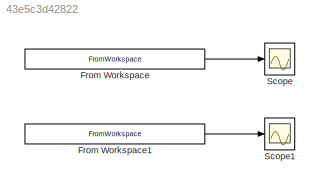
MODEL slx_43e5c3d42822
KIND model
BLOCK [FromWorkspace] From Workspace
  SampleTime = 0
  VariableName = [time2-time2(1),state2]
  ZeroCross = on
BLOCK [FromWorkspace] From Workspace1
  SampleTime = 0
  VariableName = [time2-time2(1),control2]
  ZeroCross = on
BLOCK [Scope] Scope
  Floating = off
  LimitDataPoints = off
  NumInputPorts = 1
  Ports = [1]
  SaveName = state2Resampled
  SaveToWorkspace = on
  ShowLegends = off
BLOCK [Scope] Scope1
  Floating = off
  LimitDataPoints = off
  NumInputPorts = 1
  Ports = [1]
  SaveName = control2Resampled
  SaveToWorkspace = on
  ShowLegends = off
LINE From Workspace1:1 -> Scope1:1
LINE From Workspace:1 -> Scope:1
